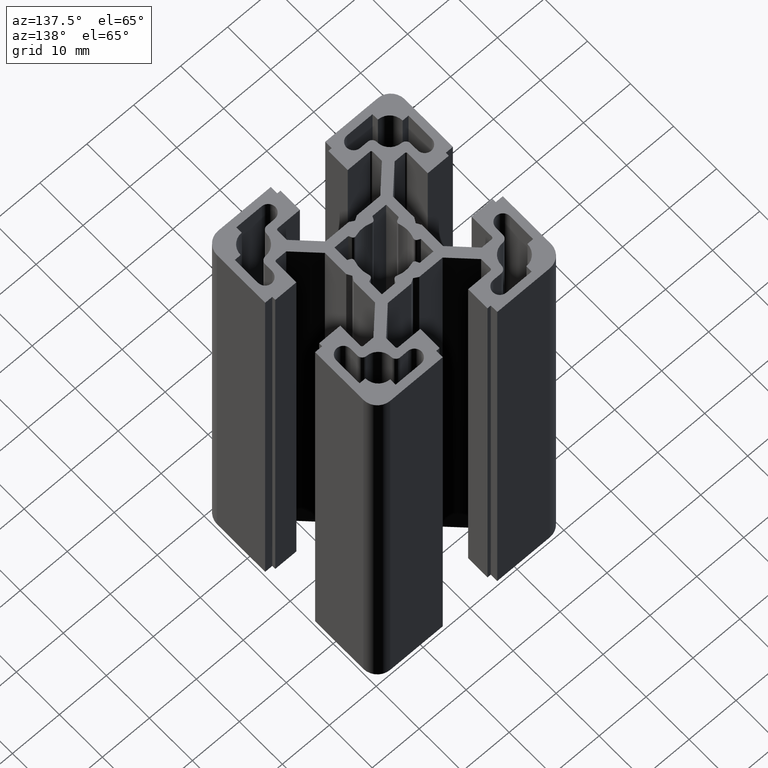
[diagram: clean part render]
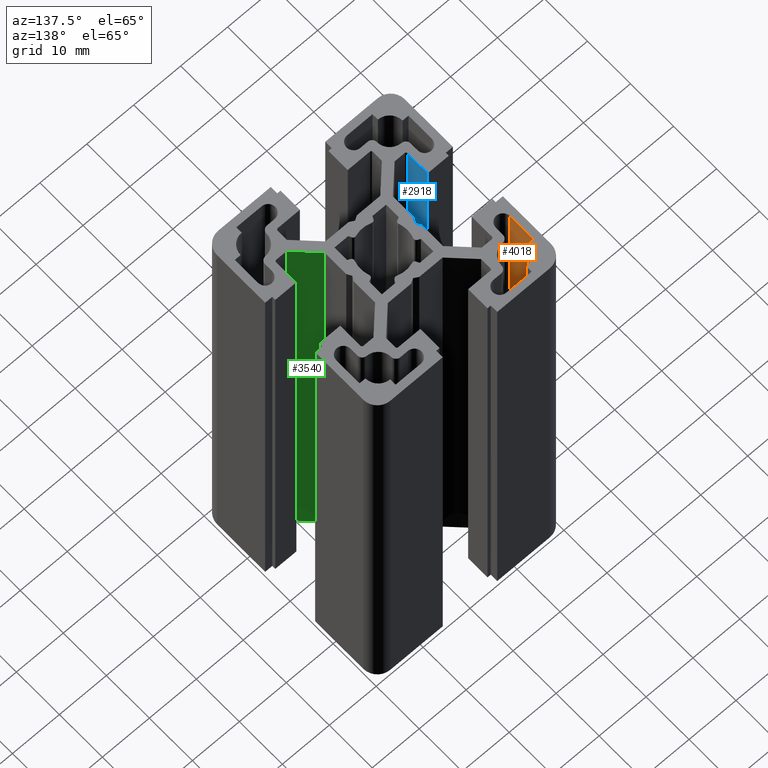
[diagram: same view with three faces highlighted in distinct colors, each labeled with its STEP entity id]
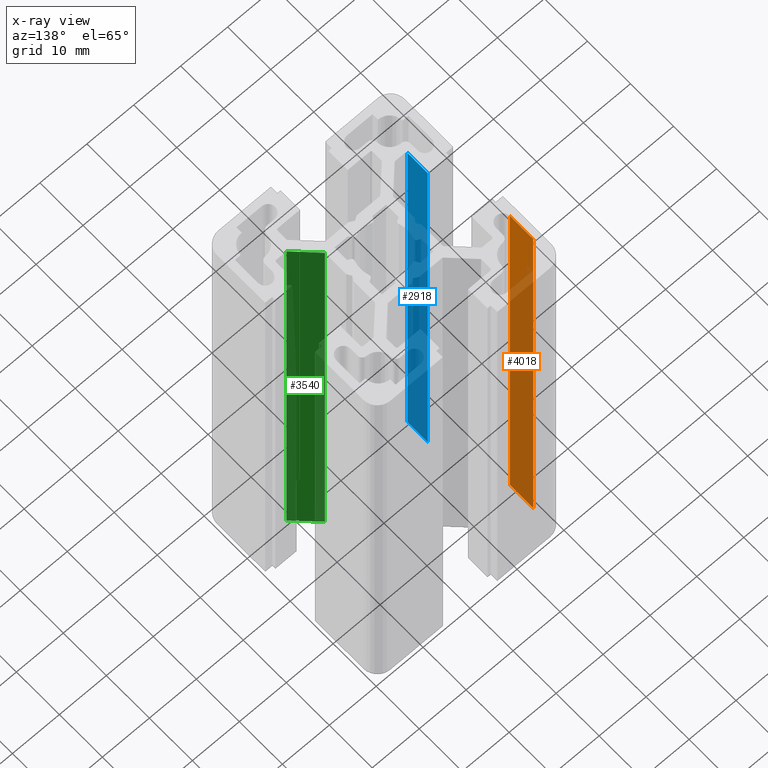
[diagram: x-ray of the same camera — body ghosted, the three highlighted faces saturated]
A machine part, auxiliary view with three faces highlighted in distinct colors.
The next image is the same camera in x-ray (body ghosted, the three faces saturated) — at least one of them is partly hidden behind the body in this view.
Their STEP definitions:

[orange] entity #4018 — the highlighted planar face has unit normal (1, 0, -0).
#1598 = DIRECTION ( 'NONE',  ( -0.0000000000000000000, -0.0000000000000000000, -1.000000000000000000 ) ) ;
#1599 = VECTOR ( 'NONE', #1598, 1000.000000000000000 ) ;
#1600 = CARTESIAN_POINT ( 'NONE',  ( -18.50000000000000400, 9.099999999999999600, 100.0000000000000000 ) ) ;
#1601 = LINE ( 'NONE', #1600, #1599 ) ;
#1679 = DIRECTION ( 'NONE',  ( 1.000000000000000000, 0.0000000000000000000, -0.0000000000000000000 ) ) ;
#1686 = CARTESIAN_POINT ( 'NONE',  ( -18.50000000000000000, 14.49999987457577100, 100.0000000000000000 ) ) ;
#1687 = AXIS2_PLACEMENT_3D ( 'NONE', #1686, #1679, #1721 ) ;
#1719 = VERTEX_POINT ( 'NONE', #4118 ) ;
#1721 = DIRECTION ( 'NONE',  ( -0.0000000000000000000, 0.0000000000000000000, -1.000000000000000000 ) ) ;
#1727 = PLANE ( 'NONE',  #1687 ) ;
#1728 = DIRECTION ( 'NONE',  ( -0.0000000000000000000, -0.0000000000000000000, -1.000000000000000000 ) ) ;
#1729 = VECTOR ( 'NONE', #1728, 1000.000000000000000 ) ;
#1730 = CARTESIAN_POINT ( 'NONE',  ( -18.50000000000000000, 14.49999987457577100, 100.0000000000000000 ) ) ;
#1731 = LINE ( 'NONE', #1730, #1729 ) ;
#1732 = FACE_OUTER_BOUND ( 'NONE', #4016, .T. ) ;
#1995 = EDGE_CURVE ( 'NONE', #1719, #2118, #4164, .T. ) ;
#2118 = VERTEX_POINT ( 'NONE', #4240 ) ;
#2312 = EDGE_CURVE ( 'NONE', #2321, #2328, #4617, .T. ) ;
#2321 = VERTEX_POINT ( 'NONE', #4601 ) ;
#2328 = VERTEX_POINT ( 'NONE', #4656 ) ;
#3955 = EDGE_CURVE ( 'NONE', #2118, #2328, #1601, .T. ) ;
#3956 = ORIENTED_EDGE ( 'NONE', *, *, #1995, .T. ) ;
#4013 = EDGE_CURVE ( 'NONE', #1719, #2321, #1731, .T. ) ;
#4016 = EDGE_LOOP ( 'NONE', ( #4019, #4021, #3956, #4017 ) ) ;
#4017 = ORIENTED_EDGE ( 'NONE', *, *, #3955, .T. ) ;
#4018 = ADVANCED_FACE ( 'NONE', ( #1732 ), #1727, .T. ) ;
#4019 = ORIENTED_EDGE ( 'NONE', *, *, #2312, .F. ) ;
#4021 = ORIENTED_EDGE ( 'NONE', *, *, #4013, .F. ) ;
#4118 = CARTESIAN_POINT ( 'NONE',  ( -18.50000000000000000, 14.49999987457577100, 100.0000000000000000 ) ) ;
#4161 = DIRECTION ( 'NONE',  ( 0.0000000000000000000, -1.000000000000000000, 0.0000000000000000000 ) ) ;
#4162 = VECTOR ( 'NONE', #4161, 1000.000000000000000 ) ;
#4163 = CARTESIAN_POINT ( 'NONE',  ( -18.50000000000000000, 14.49999987457577100, 100.0000000000000000 ) ) ;
#4164 = LINE ( 'NONE', #4163, #4162 ) ;
#4240 = CARTESIAN_POINT ( 'NONE',  ( -18.50000000000000400, 9.099999999999999600, 100.0000000000000000 ) ) ;
#4601 = CARTESIAN_POINT ( 'NONE',  ( -18.50000000000000000, 14.49999987457577100, 0.0000000000000000000 ) ) ;
#4614 = DIRECTION ( 'NONE',  ( 0.0000000000000000000, -1.000000000000000000, 0.0000000000000000000 ) ) ;
#4615 = VECTOR ( 'NONE', #4614, 1000.000000000000000 ) ;
#4616 = CARTESIAN_POINT ( 'NONE',  ( -18.50000000000000000, 14.49999987457577100, 0.0000000000000000000 ) ) ;
#4617 = LINE ( 'NONE', #4616, #4615 ) ;
#4656 = CARTESIAN_POINT ( 'NONE',  ( -18.50000000000000400, 9.099999999999999600, 0.0000000000000000000 ) ) ;

[blue] entity #2918 — the highlighted planar face has unit normal (-1, 0, 0).
#4 = DIRECTION ( 'NONE',  ( -0.0000000000000000000, -0.0000000000000000000, -1.000000000000000000 ) ) ;
#5 = VECTOR ( 'NONE', #4, 1000.000000000000000 ) ;
#6 = CARTESIAN_POINT ( 'NONE',  ( -14.00000000000000000, -9.824999999999999300, 100.0000000000000000 ) ) ;
#7 = LINE ( 'NONE', #6, #5 ) ;
#17 = DIRECTION ( 'NONE',  ( -0.0000000000000000000, -0.0000000000000000000, -1.000000000000000000 ) ) ;
#18 = VECTOR ( 'NONE', #17, 1000.000000000000000 ) ;
#19 = CARTESIAN_POINT ( 'NONE',  ( -14.00000000000000000, -5.099999999999997900, 100.0000000000000000 ) ) ;
#20 = LINE ( 'NONE', #19, #18 ) ;
#65 = DIRECTION ( 'NONE',  ( 0.0000000000000000000, 0.0000000000000000000, 1.000000000000000000 ) ) ;
#66 = DIRECTION ( 'NONE',  ( -1.000000000000000000, 0.0000000000000000000, 0.0000000000000000000 ) ) ;
#67 = CARTESIAN_POINT ( 'NONE',  ( -14.00000000000000000, -9.824999999999999300, 100.0000000000000000 ) ) ;
#75 = AXIS2_PLACEMENT_3D ( 'NONE', #67, #66, #65 ) ;
#77 = FACE_OUTER_BOUND ( 'NONE', #2930, .T. ) ;
#86 = PLANE ( 'NONE',  #75 ) ;
#2077 = VERTEX_POINT ( 'NONE', #4196 ) ;
#2122 = EDGE_CURVE ( 'NONE', #2077, #2125, #4278, .T. ) ;
#2125 = VERTEX_POINT ( 'NONE', #4279 ) ;
#2571 = EDGE_CURVE ( 'NONE', #2572, #2601, #5026, .T. ) ;
#2572 = VERTEX_POINT ( 'NONE', #5021 ) ;
#2601 = VERTEX_POINT ( 'NONE', #5127 ) ;
#2870 = EDGE_CURVE ( 'NONE', #2125, #2601, #20, .T. ) ;
#2877 = EDGE_CURVE ( 'NONE', #2077, #2572, #7, .T. ) ;
#2918 = ADVANCED_FACE ( 'NONE', ( #77 ), #86, .F. ) ;
#2919 = ORIENTED_EDGE ( 'NONE', *, *, #2122, .F. ) ;
#2920 = ORIENTED_EDGE ( 'NONE', *, *, #2870, .F. ) ;
#2923 = ORIENTED_EDGE ( 'NONE', *, *, #2877, .T. ) ;
#2929 = ORIENTED_EDGE ( 'NONE', *, *, #2571, .T. ) ;
#2930 = EDGE_LOOP ( 'NONE', ( #2929, #2920, #2919, #2923 ) ) ;
#4196 = CARTESIAN_POINT ( 'NONE',  ( -14.00000000000000000, -9.824999999999999300, 100.0000000000000000 ) ) ;
#4275 = DIRECTION ( 'NONE',  ( 0.0000000000000000000, 1.000000000000000000, 0.0000000000000000000 ) ) ;
#4276 = VECTOR ( 'NONE', #4275, 1000.000000000000000 ) ;
#4277 = CARTESIAN_POINT ( 'NONE',  ( -14.00000000000000000, -9.824999999999999300, 100.0000000000000000 ) ) ;
#4278 = LINE ( 'NONE', #4277, #4276 ) ;
#4279 = CARTESIAN_POINT ( 'NONE',  ( -14.00000000000000000, -5.099999999999997900, 100.0000000000000000 ) ) ;
#5021 = CARTESIAN_POINT ( 'NONE',  ( -14.00000000000000000, -9.824999999999999300, 0.0000000000000000000 ) ) ;
#5026 = LINE ( 'NONE', #5070, #5069 ) ;
#5068 = DIRECTION ( 'NONE',  ( 0.0000000000000000000, 1.000000000000000000, 0.0000000000000000000 ) ) ;
#5069 = VECTOR ( 'NONE', #5068, 1000.000000000000000 ) ;
#5070 = CARTESIAN_POINT ( 'NONE',  ( -14.00000000000000000, -9.824999999999999300, 0.0000000000000000000 ) ) ;
#5127 = CARTESIAN_POINT ( 'NONE',  ( -14.00000000000000000, -5.099999999999997900, 0.0000000000000000000 ) ) ;

[green] entity #3540 — the highlighted planar face has unit normal (-0.7071, -0.7071, 0).
#955 = DIRECTION ( 'NONE',  ( -0.0000000000000000000, -0.0000000000000000000, -1.000000000000000000 ) ) ;
#956 = VECTOR ( 'NONE', #955, 1000.000000000000000 ) ;
#957 = CARTESIAN_POINT ( 'NONE',  ( 11.53921317152062000, -10.12500000000000000, 100.0000000000000000 ) ) ;
#958 = LINE ( 'NONE', #957, #956 ) ;
#969 = CARTESIAN_POINT ( 'NONE',  ( 7.250000000000000000, -5.835786312549495300, 100.0000000000000000 ) ) ;
#989 = PLANE ( 'NONE',  #1012 ) ;
#1003 = DIRECTION ( 'NONE',  ( -0.0000000000000000000, -0.0000000000000000000, -1.000000000000000000 ) ) ;
#1004 = VECTOR ( 'NONE', #1003, 1000.000000000000000 ) ;
#1005 = CARTESIAN_POINT ( 'NONE',  ( 7.250000000000000000, -5.835786312549495300, 100.0000000000000000 ) ) ;
#1006 = LINE ( 'NONE', #1005, #1004 ) ;
#1008 = DIRECTION ( 'NONE',  ( 0.7071067386592242400, -0.7071068237138682400, 0.0000000000000000000 ) ) ;
#1009 = DIRECTION ( 'NONE',  ( -0.7071068237138682400, -0.7071067386592242400, 0.0000000000000000000 ) ) ;
#1012 = AXIS2_PLACEMENT_3D ( 'NONE', #969, #1009, #1008 ) ;
#1025 = FACE_OUTER_BOUND ( 'NONE', #3543, .T. ) ;
#2429 = EDGE_CURVE ( 'NONE', #2438, #2440, #4810, .T. ) ;
#2438 = VERTEX_POINT ( 'NONE', #4797 ) ;
#2440 = VERTEX_POINT ( 'NONE', #4851 ) ;
#2453 = VERTEX_POINT ( 'NONE', #4827 ) ;
#2517 = VERTEX_POINT ( 'NONE', #4943 ) ;
#2520 = EDGE_CURVE ( 'NONE', #2453, #2517, #4935, .T. ) ;
#3492 = EDGE_CURVE ( 'NONE', #2438, #2453, #958, .T. ) ;
#3540 = ADVANCED_FACE ( 'NONE', ( #1025 ), #989, .F. ) ;
#3541 = EDGE_CURVE ( 'NONE', #2440, #2517, #1006, .T. ) ;
#3543 = EDGE_LOOP ( 'NONE', ( #3544, #3546, #3549, #3548 ) ) ;
#3544 = ORIENTED_EDGE ( 'NONE', *, *, #2520, .T. ) ;
#3546 = ORIENTED_EDGE ( 'NONE', *, *, #3541, .F. ) ;
#3548 = ORIENTED_EDGE ( 'NONE', *, *, #3492, .T. ) ;
#3549 = ORIENTED_EDGE ( 'NONE', *, *, #2429, .F. ) ;
#4797 = CARTESIAN_POINT ( 'NONE',  ( 11.53921317152062000, -10.12500000000000000, 100.0000000000000000 ) ) ;
#4807 = DIRECTION ( 'NONE',  ( -0.7071067386592242400, 0.7071068237138682400, -0.0000000000000000000 ) ) ;
#4808 = VECTOR ( 'NONE', #4807, 1000.000000000000100 ) ;
#4809 = CARTESIAN_POINT ( 'NONE',  ( 7.250000000000000000, -5.835786312549495300, 100.0000000000000000 ) ) ;
#4810 = LINE ( 'NONE', #4809, #4808 ) ;
#4827 = CARTESIAN_POINT ( 'NONE',  ( 11.53921317152062000, -10.12500000000000000, 0.0000000000000000000 ) ) ;
#4851 = CARTESIAN_POINT ( 'NONE',  ( 7.250000000000000000, -5.835786312549495300, 100.0000000000000000 ) ) ;
#4932 = DIRECTION ( 'NONE',  ( -0.7071067386592242400, 0.7071068237138682400, -0.0000000000000000000 ) ) ;
#4933 = VECTOR ( 'NONE', #4932, 1000.000000000000100 ) ;
#4934 = CARTESIAN_POINT ( 'NONE',  ( 7.250000000000000000, -5.835786312549495300, 0.0000000000000000000 ) ) ;
#4935 = LINE ( 'NONE', #4934, #4933 ) ;
#4943 = CARTESIAN_POINT ( 'NONE',  ( 7.250000000000000000, -5.835786312549495300, 0.0000000000000000000 ) ) ;